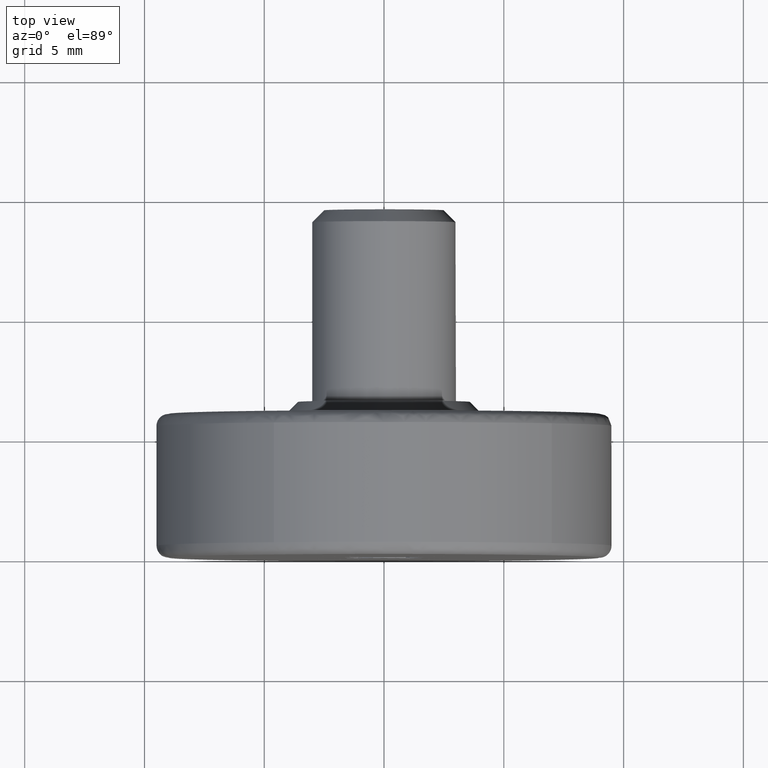
[diagram: clean part render]
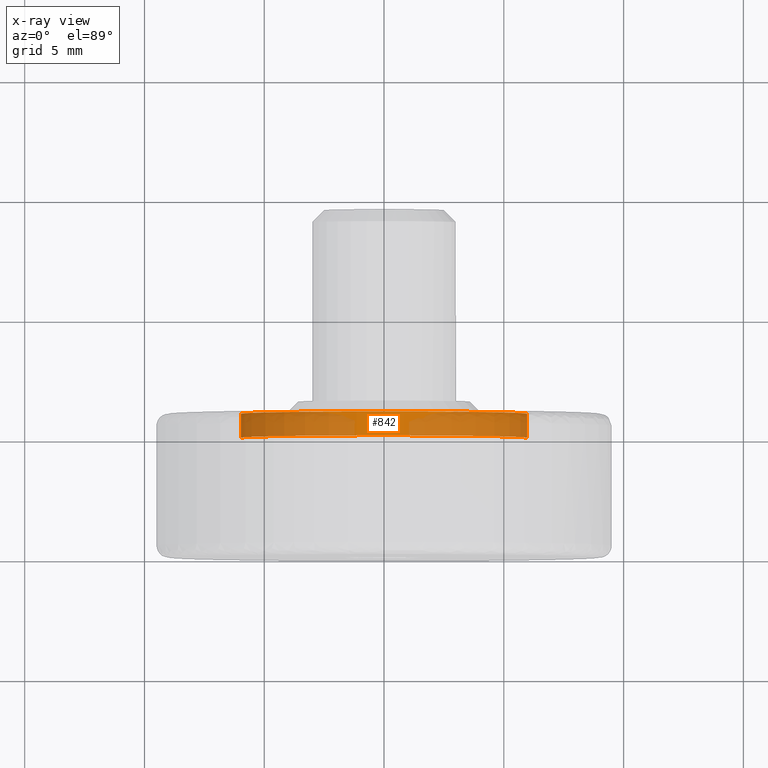
[diagram: x-ray — body ghosted, one internal face saturated and labeled with its STEP entity id]
A machine part, top view, then the same camera in x-ray: the body is ghosted and one INTERNAL B-rep face — a face not visible from any outside direction — is saturated and labeled: STEP entity #842.
In plain terms, the highlighted face is a freeform B-spline surface patch.
Its self-contained STEP definition (entity closure, byte-faithful):
#744=CARTESIAN_POINT('',(-5.971534829061434,4.974999999999999,0.469969983409795));
#745=CARTESIAN_POINT('',(-5.501564845651640,4.974999999999999,6.441504812471229));
#746=CARTESIAN_POINT('',(0.469969983409795,4.974999999999999,5.971534829061434));
#747=CARTESIAN_POINT('',(6.441504812471229,4.974999999999999,5.501564845651640));
#748=CARTESIAN_POINT('',(5.971534829061434,4.974999999999999,-0.469969983409795));
#749=CARTESIAN_POINT('',(-5.971534829061434,6.025625000000001,0.469969983409795));
#750=CARTESIAN_POINT('',(-5.501564845651640,6.025625000000000,6.441504812471229));
#751=CARTESIAN_POINT('',(0.469969983409795,6.025625000000001,5.971534829061434));
#752=CARTESIAN_POINT('',(6.441504812471229,6.025625000000000,5.501564845651640));
#753=CARTESIAN_POINT('',(5.971534829061434,6.025625000000001,-0.469969983409795));
#761=(BOUNDED_SURFACE()B_SPLINE_SURFACE(2,1,((#744,#749),(#745,#750),(#746,#751),(#747,#752),(#748,#753)),.UNSPECIFIED.,.F.,.F.,.U.)B_SPLINE_SURFACE_WITH_KNOTS((3,2,3),(2,2),(0.0,9.924556954459355,19.849113908918710),(0.0,1.0),.UNSPECIFIED.)GEOMETRIC_REPRESENTATION_ITEM()RATIONAL_B_SPLINE_SURFACE(((1.0,1.0),(0.707106781186548,0.707106781186548),(1.0,1.0),(0.707106781186548,0.707106781186548),(1.0,1.0)))REPRESENTATION_ITEM('')SURFACE());
#762=CARTESIAN_POINT('',(0.0,6.0,5.989999999999999));
#763=VERTEX_POINT('',#762);
#764=CARTESIAN_POINT('',(-5.971535460733544,6.000000000000009,0.469961957116721));
#765=VERTEX_POINT('',#764);
#766=CARTESIAN_POINT('',(0.0,6.0,5.989999999999999));
#767=CARTESIAN_POINT('',(-5.537106510421141,5.999999999999998,5.989999999999998));
#768=CARTESIAN_POINT('',(-5.971535460733544,6.000000000000009,0.469961957116721));
#776=(BOUNDED_CURVE()B_SPLINE_CURVE(2,(#766,#767,#768),.UNSPECIFIED.,.F.,.U.)B_SPLINE_CURVE_WITH_KNOTS((3,3),(0.0,0.236331531043111),.UNSPECIFIED.)CURVE()GEOMETRIC_REPRESENTATION_ITEM()RATIONAL_B_SPLINE_CURVE((1.0,0.723120388662688,0.969723837021123))REPRESENTATION_ITEM(''));
#777=EDGE_CURVE('',#763,#765,#776,.T.);
#778=ORIENTED_EDGE('',*,*,#777,.T.);
#779=CARTESIAN_POINT('',(-5.971535452939772,5.0,0.469962056149358));
#780=VERTEX_POINT('',#779);
#781=CARTESIAN_POINT('',(-5.971535452939772,5.0,0.469962056149358));
#782=CARTESIAN_POINT('',(-5.971535460733544,6.000000000000009,0.469961957116721));
#783=QUASI_UNIFORM_CURVE('',1,(#781,#782),.UNSPECIFIED.,.F.,.U.);
#784=EDGE_CURVE('',#780,#765,#783,.T.);
#785=ORIENTED_EDGE('',*,*,#784,.F.);
#786=CARTESIAN_POINT('',(0.0,5.0,5.989999999999999));
#787=VERTEX_POINT('',#786);
#788=CARTESIAN_POINT('',(0.0,5.0,5.989999999999999));
#789=CARTESIAN_POINT('',(-5.537106418309193,5.0,5.989999999999998));
#790=CARTESIAN_POINT('',(-5.971535452939772,5.0,0.469962056149358));
#798=(BOUNDED_CURVE()B_SPLINE_CURVE(2,(#788,#789,#790),.UNSPECIFIED.,.F.,.U.)B_SPLINE_CURVE_WITH_KNOTS((3,3),(0.0,0.236331528200186),.UNSPECIFIED.)CURVE()GEOMETRIC_REPRESENTATION_ITEM()RATIONAL_B_SPLINE_CURVE((1.0,0.723120391993381,0.969723831088144))REPRESENTATION_ITEM(''));
#799=EDGE_CURVE('',#787,#780,#798,.T.);
#800=ORIENTED_EDGE('',*,*,#799,.F.);
#801=CARTESIAN_POINT('',(5.971535452939772,5.0,-0.469962056149358));
#802=VERTEX_POINT('',#801);
#803=CARTESIAN_POINT('',(5.971535452939772,5.0,-0.469962056149358));
#804=CARTESIAN_POINT('',(5.990000000000000,5.0,-0.235343758952287));
#805=CARTESIAN_POINT('',(5.989999999999999,5.0,0.0));
#806=CARTESIAN_POINT('',(5.989999999999998,5.000000000000001,5.989999999999998));
#807=CARTESIAN_POINT('',(0.0,5.0,5.989999999999999));
#815=(BOUNDED_CURVE()B_SPLINE_CURVE(2,(#803,#804,#805,#806,#807),.UNSPECIFIED.,.F.,.U.)B_SPLINE_CURVE_WITH_KNOTS((3,2,3),(0.736331528200186,0.750000000000000,1.0),.UNSPECIFIED.)CURVE()GEOMETRIC_REPRESENTATION_ITEM()RATIONAL_B_SPLINE_CURVE((0.969723831088144,0.983986389193166,1.0,0.707106781186548,1.0))REPRESENTATION_ITEM(''));
#816=EDGE_CURVE('',#802,#787,#815,.T.);
#817=ORIENTED_EDGE('',*,*,#816,.F.);
#818=CARTESIAN_POINT('',(5.971535460733543,6.000000000000009,-0.469961957116722));
#819=VERTEX_POINT('',#818);
#820=CARTESIAN_POINT('',(5.971535452939772,5.0,-0.469962056149358));
#821=CARTESIAN_POINT('',(5.971535460733543,6.000000000000009,-0.469961957116722));
#822=QUASI_UNIFORM_CURVE('',1,(#820,#821),.UNSPECIFIED.,.F.,.U.);
#823=EDGE_CURVE('',#802,#819,#822,.T.);
#824=ORIENTED_EDGE('',*,*,#823,.T.);
#825=CARTESIAN_POINT('',(5.971535460733543,6.000000000000009,-0.469961957116722));
#826=CARTESIAN_POINT('',(5.989999999999999,6.0,-0.235343709206193));
#827=CARTESIAN_POINT('',(5.989999999999999,6.0,0.0));
#828=CARTESIAN_POINT('',(5.989999999999998,6.0,5.989999999999998));
#829=CARTESIAN_POINT('',(0.0,6.0,5.989999999999999));
#837=(BOUNDED_CURVE()B_SPLINE_CURVE(2,(#825,#826,#827,#828,#829),.UNSPECIFIED.,.F.,.U.)B_SPLINE_CURVE_WITH_KNOTS((3,2,3),(0.736331531043111,0.750000000000000,1.0),.UNSPECIFIED.)CURVE()GEOMETRIC_REPRESENTATION_ITEM()RATIONAL_B_SPLINE_CURVE((0.969723837021123,0.983986392523860,1.0,0.707106781186548,1.0))REPRESENTATION_ITEM(''));
#838=EDGE_CURVE('',#819,#763,#837,.T.);
#839=ORIENTED_EDGE('',*,*,#838,.T.);
#840=EDGE_LOOP('',(#778,#785,#800,#817,#824,#839));
#841=FACE_OUTER_BOUND('',#840,.T.);
#842=ADVANCED_FACE('',(#841),#761,.T.);